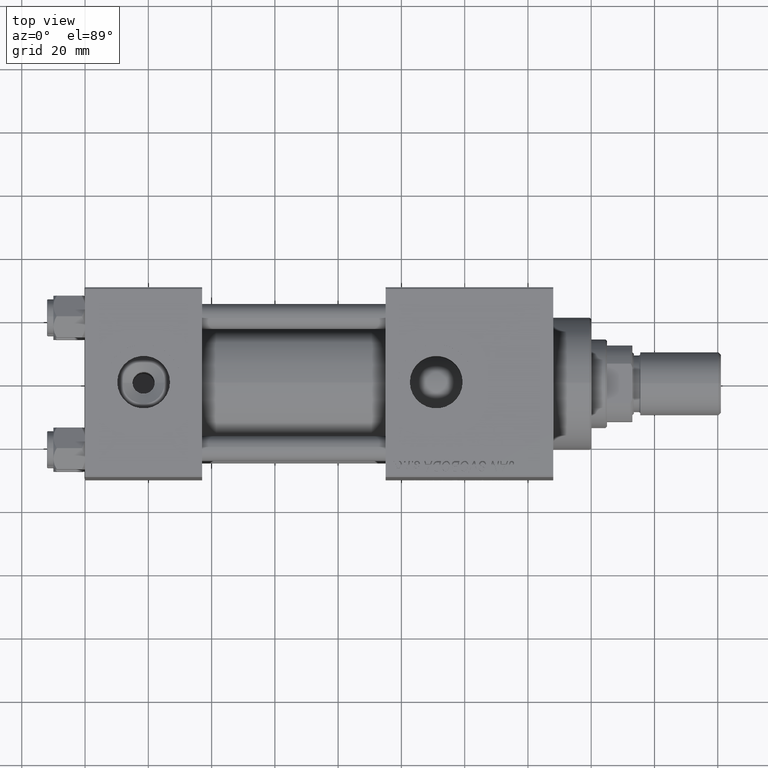
[diagram: clean part render]
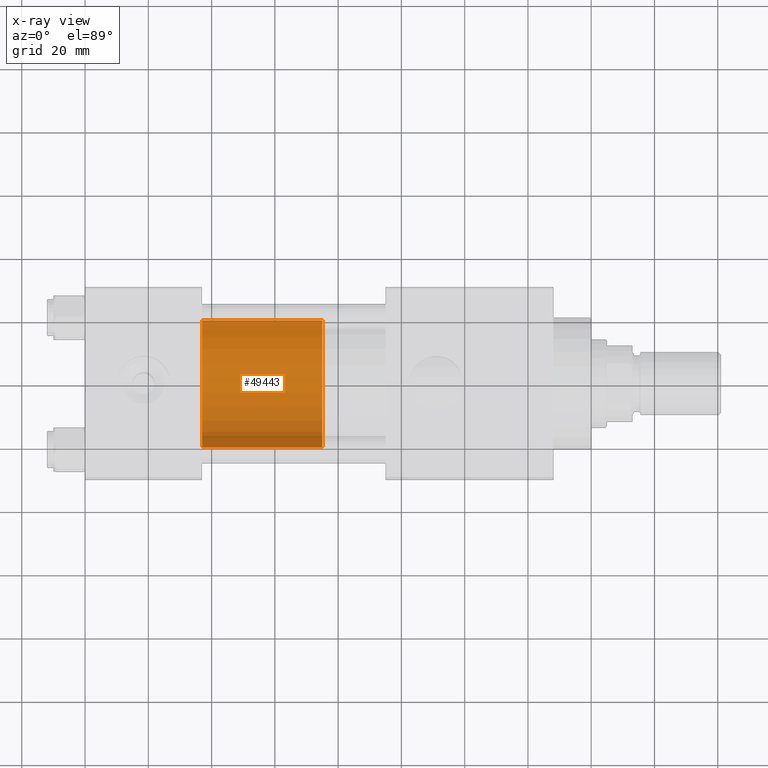
[diagram: x-ray — body ghosted, one internal face saturated and labeled with its STEP entity id]
A machine part, top view, then the same camera in x-ray: the body is ghosted and one INTERNAL B-rep face — a face not visible from any outside direction — is saturated and labeled: STEP entity #49443.
In plain terms, the highlighted cylindrical surface (partial cylindrical patch) has radius 20 mm, axis along (-1, 0, 0).
Its self-contained STEP definition (entity closure, byte-faithful):
#1719 = ORIENTED_EDGE ( 'NONE', *, *, #15496, .T. ) ;
#1813 = EDGE_CURVE ( 'NONE', #47044, #24355, #36210, .T. ) ;
#1819 = EDGE_LOOP ( 'NONE', ( #14379, #16327, #1719, #37255 ) ) ;
#3547 = CARTESIAN_POINT ( 'NONE',  ( 0.000000000000000000, 0.000000000000000000, 38.00000000000000000 ) ) ;
#4786 = AXIS2_PLACEMENT_3D ( 'NONE', #18396, #50899, #14381 ) ;
#6860 = DIRECTION ( 'NONE',  ( 1.000000000000000000, 0.000000000000000000, 0.000000000000000000 ) ) ;
#7673 = CARTESIAN_POINT ( 'NONE',  ( 20.00000000000000000, 2.449293598294706513E-15, 38.00000000000000000 ) ) ;
#8605 = CYLINDRICAL_SURFACE ( 'NONE', #11558, 20.00000000000000000 ) ;
#9740 = CARTESIAN_POINT ( 'NONE',  ( 20.00000000000000000, 2.449293598294706513E-15, 0.000000000000000000 ) ) ;
#11558 = AXIS2_PLACEMENT_3D ( 'NONE', #3547, #16358, #35832 ) ;
#12460 = DIRECTION ( 'NONE',  ( -0.000000000000000000, -0.000000000000000000, -1.000000000000000000 ) ) ;
#14379 = ORIENTED_EDGE ( 'NONE', *, *, #39511, .F. ) ;
#14381 = DIRECTION ( 'NONE',  ( 1.000000000000000000, 0.000000000000000000, 0.000000000000000000 ) ) ;
#15496 = EDGE_CURVE ( 'NONE', #32041, #24355, #27787, .T. ) ;
#15561 = FACE_OUTER_BOUND ( 'NONE', #1819, .T. ) ;
#16327 = ORIENTED_EDGE ( 'NONE', *, *, #17432, .T. ) ;
#16358 = DIRECTION ( 'NONE',  ( -0.000000000000000000, -0.000000000000000000, -1.000000000000000000 ) ) ;
#17432 = EDGE_CURVE ( 'NONE', #46693, #32041, #39703, .T. ) ;
#18396 = CARTESIAN_POINT ( 'NONE',  ( 0.000000000000000000, 0.000000000000000000, 0.000000000000000000 ) ) ;
#18881 = CARTESIAN_POINT ( 'NONE',  ( 0.000000000000000000, 0.000000000000000000, 38.00000000000000000 ) ) ;
#24220 = CARTESIAN_POINT ( 'NONE',  ( -20.00000000000000000, 0.000000000000000000, 38.00000000000000000 ) ) ;
#24355 = VERTEX_POINT ( 'NONE', #28979 ) ;
#27491 = CIRCLE ( 'NONE', #46197, 20.00000000000000000 ) ;
#27787 = CIRCLE ( 'NONE', #4786, 20.00000000000000000 ) ;
#28979 = CARTESIAN_POINT ( 'NONE',  ( -20.00000000000000000, 0.000000000000000000, 0.000000000000000000 ) ) ;
#31412 = DIRECTION ( 'NONE',  ( 0.000000000000000000, 0.000000000000000000, 1.000000000000000000 ) ) ;
#31698 = DIRECTION ( 'NONE',  ( -0.000000000000000000, -0.000000000000000000, -1.000000000000000000 ) ) ;
#32041 = VERTEX_POINT ( 'NONE', #9740 ) ;
#35328 = CARTESIAN_POINT ( 'NONE',  ( -20.00000000000000000, 0.000000000000000000, 38.00000000000000000 ) ) ;
#35832 = DIRECTION ( 'NONE',  ( -1.000000000000000000, 0.000000000000000000, 0.000000000000000000 ) ) ;
#36210 = LINE ( 'NONE', #24220, #36778 ) ;
#36778 = VECTOR ( 'NONE', #12460, 1000.000000000000000 ) ;
#37255 = ORIENTED_EDGE ( 'NONE', *, *, #1813, .F. ) ;
#39511 = EDGE_CURVE ( 'NONE', #46693, #47044, #27491, .T. ) ;
#39703 = LINE ( 'NONE', #7673, #49113 ) ;
#46197 = AXIS2_PLACEMENT_3D ( 'NONE', #18881, #31412, #6860 ) ;
#46693 = VERTEX_POINT ( 'NONE', #52236 ) ;
#47044 = VERTEX_POINT ( 'NONE', #35328 ) ;
#49113 = VECTOR ( 'NONE', #31698, 1000.000000000000000 ) ;
#49443 = ADVANCED_FACE ( 'NONE', ( #15561 ), #8605, .T. ) ;
#50899 = DIRECTION ( 'NONE',  ( 0.000000000000000000, 0.000000000000000000, 1.000000000000000000 ) ) ;
#52236 = CARTESIAN_POINT ( 'NONE',  ( 20.00000000000000000, 2.449293598294706513E-15, 38.00000000000000000 ) ) ;